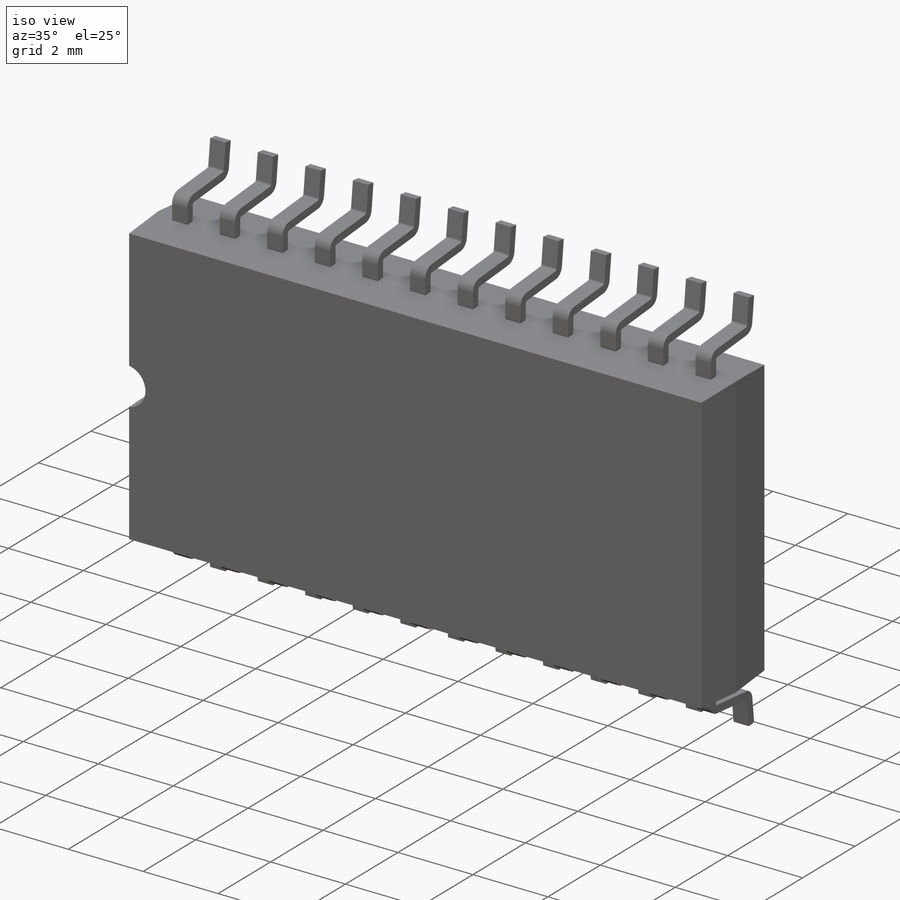
[diagram: iso view]
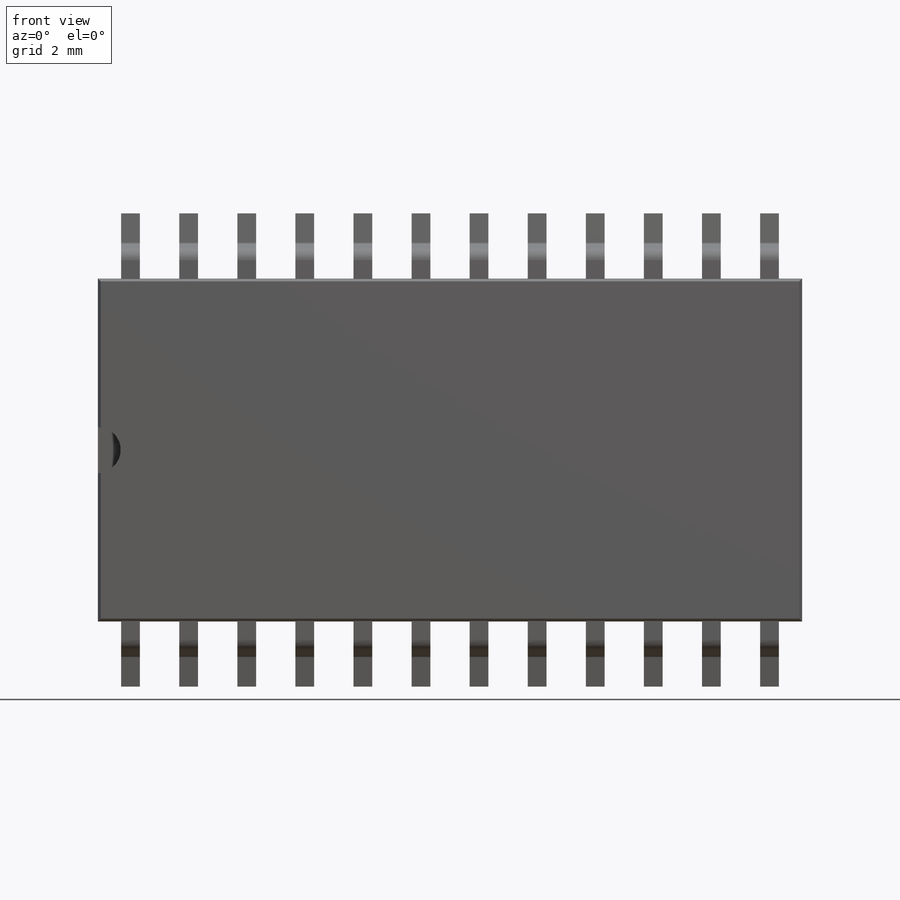
[diagram: front view]
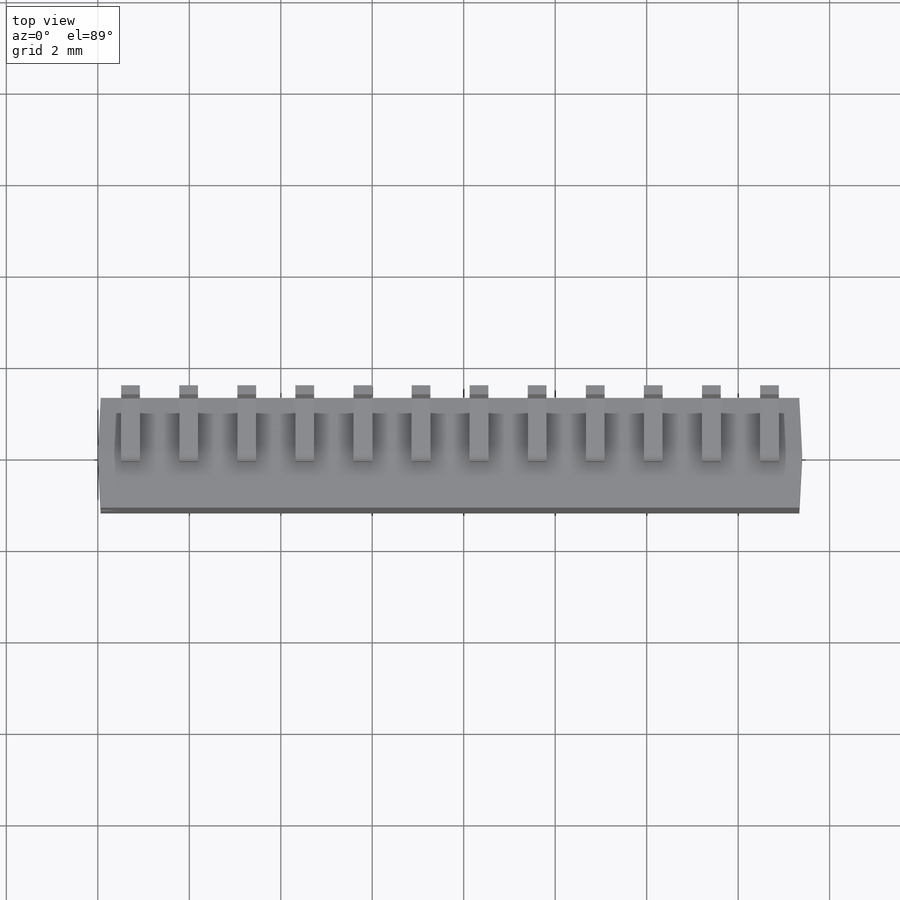
[diagram: top view]
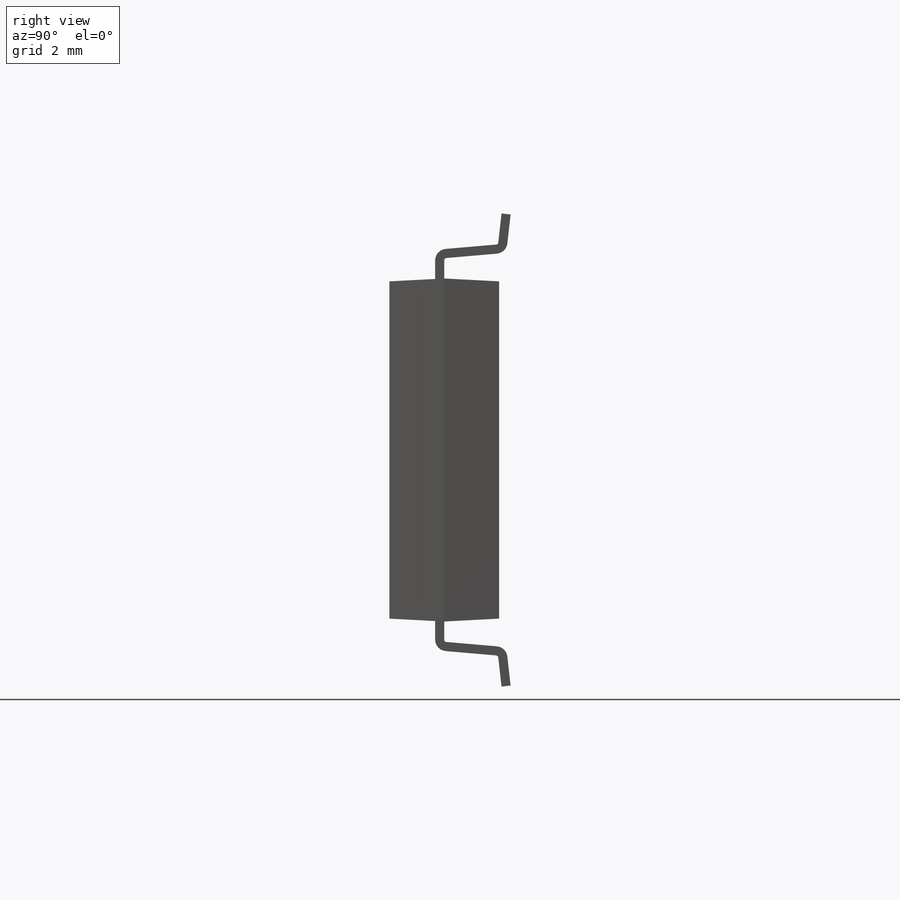
[diagram: right view]
SOLIDWORKS PART (.sldprt)
format: sldprt  version: not decoded by parser v0  size: 373,248 bytes
history: native  units: mm
features: sketch x4, extrude x2, plane x2, material x1, pattern_linear x1, mirror x1, cut_extrude x1 (+13 scaffold rows collapsed)
feature tree (25):
  scaffold x13  (default folders/planes/origin — collapsed)
  material  "Material <not specified>"
  sketch  "Sketch1"  dims[D1=15.4mm D2=7.5mm]
  extrude  "Boss-Extrude1"  Depth=1.2mm
  sketch  "Sketch2"
  extrude  "Boss-Extrude2"  Depth=1.2mm
  plane  "Plane1"  Offset=0.715mm
  plane  "Plane2"  Offset=3.75mm
  sketch  "Sketch3"  dims[c1.D1=1.4mm c1.D2=2.65mm c1.D3=0.84mm c2.D1=0.41mm c2.D5=0.2mm c2.D6=10.0mm c2.D7=0.05mm]
  pattern_linear  "LPattern1"  Count1=12 Count2=1 Spacing1=1.27mm Spacing2=10mm
  mirror  "Mirror1"
  sketch  "Sketch5"  dims[D1=0.5mm]
  cut_extrude  "Cut-Extrude4"  [1 undecoded]
decode coverage: 6 of 9 modeling features carry decoded parameters
note: 1 parameter value undecoded
note: suppression state not decoded; provenance and decode notes live in map.json
